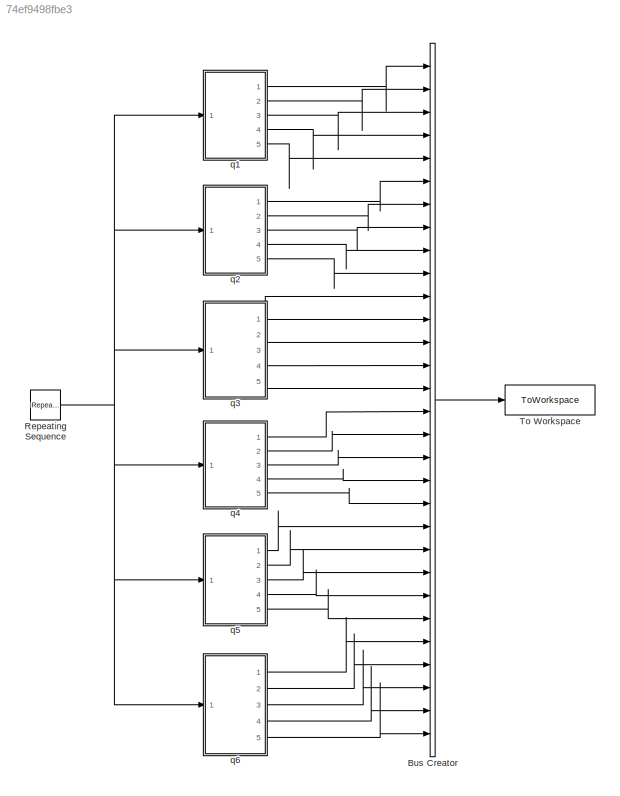
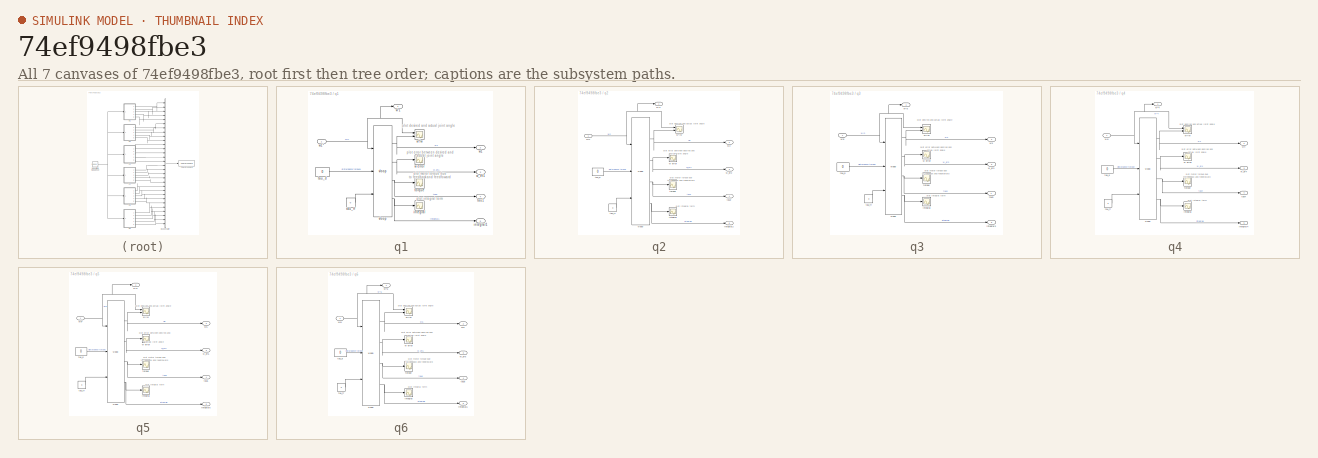
[diagram: thumbnail index - all 7 canvases of the model, root first then tree order]
MODEL slx_74ef9498fbe3
KIND model
CONFIG AbsTol = auto
CONFIG EnableMultiTasking = off
CONFIG FixedStep = auto
CONFIG MaxStep = auto
CONFIG MinStep = auto
CONFIG RelTol = 1e-3
CONFIG SampleTimeConstraint = Unconstrained
CONFIG SolverName = VariableStepAuto
CONFIG StartTime = 0.0
CONFIG StopTime = 1
BLOCK [BusCreator] Bus Creator
  DisplayOption = bar
  InheritFromInputs = on
  Inputs = 30
  Ports = [30, 1]
BLOCK [Reference] Repeating Sequence  REF=simulink/Sources/Repeating
Sequence
  Ports = [0, 1]
  SourceBlock = simulink/Sources/Repeating\nSequence
  SourceProductBaseCode = SL
  SourceType = Repeating table
BLOCK [ToWorkspace] To Workspace
  FixptAsFi = on
  MaxDataPoints = inf
  Ports = [1]
  SampleTime = -1
  SaveFormat = Structure With Time
  VariableName = vloop
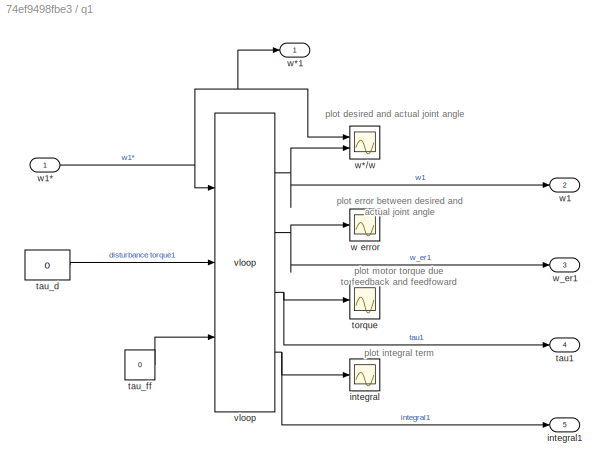
BLOCK [SubSystem] q1
  Ports = [1, 5]
  RequestExecContextInheritance = off
BLOCK [Scope] q1/integral 
  Floating = off
  NumInputPorts = 1
  Ports = [1]
  ScopeSpecificationString = Simulink.scopes.TimeScopeBlockCfg('CurrentConfiguration', extmgr.ConfigurationSet(extmgr.Configuration('Core','General UI',true),extmgr.Configuration('Core','Source UI',true),extmgr.Configuration('Sources','WiredSimulink',true,'DataLoggingVariableName','ScopeData1','DataLoggingSaveFormat','StructureWithTime','DataLoggingLimitDataPoints',true,'DataLoggingDecimation','1','DataLoggingDecimateData',tr...<+1779ch>
BLOCK [Outport] q1/integral1
  Port = 5
BLOCK [Outport] q1/tau1
  Port = 4
BLOCK [Constant] q1/tau_d
  Value = 0
BLOCK [Constant] q1/tau_ff
  Value = 0
BLOCK [Scope] q1/torque
  Floating = off
  NumInputPorts = 1
  Ports = [1]
  ScopeSpecificationString = Simulink.scopes.TimeScopeBlockCfg('CurrentConfiguration', extmgr.ConfigurationSet(extmgr.Configuration('Core','General UI',true),extmgr.Configuration('Core','Source UI',true),extmgr.Configuration('Sources','WiredSimulink',true,'DataLoggingVariableName','ScopeData2','DataLoggingSaveFormat','StructureWithTime','DataLoggingLimitDataPoints',true,'DataLoggingDecimation','1','DataLoggingDecimateData',tr...<+1768ch>
BLOCK [Reference] q1/vloop  REF=roblocks/Arm/vloop  (lib defined in mdl_2a292b13c81b, mdl_69400f8cfe22, +12 more)
  Ports = [3, 4]
  SourceBlock = roblocks/Arm/vloop
BLOCK [Scope] q1/w error
  Floating = off
  NumInputPorts = 1
  Ports = [1]
  ScopeSpecificationString = Simulink.scopes.TimeScopeBlockCfg('CurrentConfiguration', extmgr.ConfigurationSet(extmgr.Configuration('Core','General UI',true),extmgr.Configuration('Core','Source UI',true),extmgr.Configuration('Sources','WiredSimulink',true,'DataLoggingVariableName','ScopeData3','DataLoggingSaveFormat','StructureWithTime','DataLoggingLimitDataPoints',true,'DataLoggingDecimation','1','DataLoggingDecimateData',tr...<+1769ch>
BLOCK [Scope] q1/w*//w
  Floating = off
  NumInputPorts = 2
  Ports = [2]
  ScopeSpecificationString = Simulink.scopes.TimeScopeBlockCfg('CurrentConfiguration', extmgr.ConfigurationSet(extmgr.Configuration('Core','General UI',true),extmgr.Configuration('Core','Source UI',true),extmgr.Configuration('Sources','WiredSimulink',true,'DataLoggingSaveFormat','StructureWithTime','DataLoggingLimitDataPoints',true,'DataLoggingDecimation','1','DataLoggingDecimateData',true),extmgr.Configuration('Visuals','Tim...<+1743ch>
BLOCK [Outport] q1/w*1
BLOCK [Outport] q1/w1
  Port = 2
BLOCK [Inport] q1/w1*
BLOCK [Outport] q1/w_er1
  Port = 3
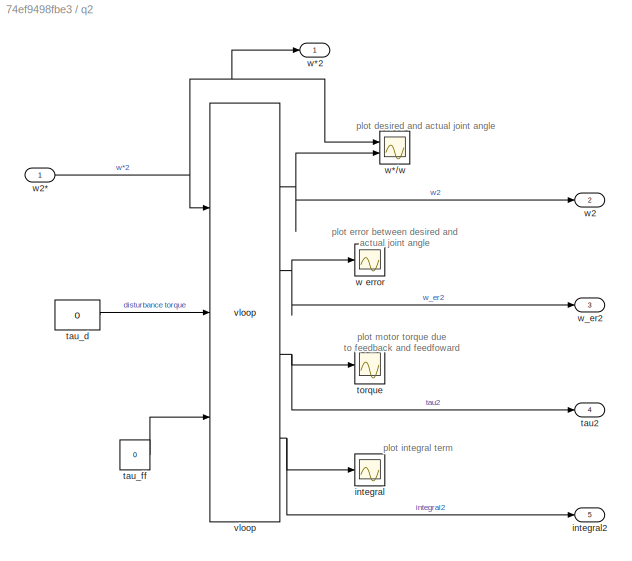
BLOCK [SubSystem] q2
  Ports = [1, 5]
  RequestExecContextInheritance = off
BLOCK [Scope] q2/integral 
  Floating = off
  NumInputPorts = 1
  Ports = [1]
  ScopeSpecificationString = Simulink.scopes.TimeScopeBlockCfg('CurrentConfiguration', extmgr.ConfigurationSet(extmgr.Configuration('Core','General UI',true),extmgr.Configuration('Core','Source UI',true),extmgr.Configuration('Sources','WiredSimulink',true,'DataLoggingVariableName','ScopeData1','DataLoggingSaveFormat','StructureWithTime','DataLoggingLimitDataPoints',true,'DataLoggingDecimation','1','DataLoggingDecimateData',tr...<+1770ch>  <repeated x5 — deduplicated; at blocks: integral>
BLOCK [Outport] q2/integral2
  Port = 5
BLOCK [Outport] q2/tau2
  Port = 4
BLOCK [Constant] q2/tau_d
  Value = 0
BLOCK [Constant] q2/tau_ff
  Value = 0
BLOCK [Scope] q2/torque
  Floating = off
  NumInputPorts = 1
  Ports = [1]
  ScopeSpecificationString = Simulink.scopes.TimeScopeBlockCfg('CurrentConfiguration', extmgr.ConfigurationSet(extmgr.Configuration('Core','General UI',true),extmgr.Configuration('Core','Source UI',true),extmgr.Configuration('Sources','WiredSimulink',true,'DataLoggingVariableName','ScopeData2','DataLoggingSaveFormat','StructureWithTime','DataLoggingLimitDataPoints',true,'DataLoggingDecimation','1','DataLoggingDecimateData',tr...<+1755ch>  <repeated x5 — deduplicated; at blocks: torque>
BLOCK [Reference] q2/vloop  REF=roblocks/Arm/vloop  (lib defined in mdl_2a292b13c81b, mdl_69400f8cfe22, +12 more)
  Ports = [3, 4]
  SourceBlock = roblocks/Arm/vloop
BLOCK [Scope] q2/w error
  Floating = off
  NumInputPorts = 1
  Ports = [1]
  ScopeSpecificationString = Simulink.scopes.TimeScopeBlockCfg('CurrentConfiguration', extmgr.ConfigurationSet(extmgr.Configuration('Core','General UI',true),extmgr.Configuration('Core','Source UI',true),extmgr.Configuration('Sources','WiredSimulink',true,'DataLoggingVariableName','ScopeData3','DataLoggingSaveFormat','StructureWithTime','DataLoggingLimitDataPoints',true,'DataLoggingDecimation','1','DataLoggingDecimateData',tr...<+1783ch>  <repeated x5 — deduplicated; at blocks: w error>
BLOCK [Scope] q2/w*//w
  Floating = off
  NumInputPorts = 2
  Ports = [2]
  ScopeSpecificationString = Simulink.scopes.TimeScopeBlockCfg('CurrentConfiguration', extmgr.ConfigurationSet(extmgr.Configuration('Core','General UI',true),extmgr.Configuration('Core','Source UI',true),extmgr.Configuration('Sources','WiredSimulink',true,'DataLoggingSaveFormat','StructureWithTime','DataLoggingLimitDataPoints',true,'DataLoggingDecimation','1','DataLoggingDecimateData',true),extmgr.Configuration('Visuals','Tim...<+1723ch>
BLOCK [Outport] q2/w*2
BLOCK [Outport] q2/w2
  Port = 2
BLOCK [Inport] q2/w2*
BLOCK [Outport] q2/w_er2
  Port = 3
BLOCK [SubSystem] q3
  Ports = [1, 5]
  RequestExecContextInheritance = off
BLOCK [Scope] q3/integral 
  Floating = off
  NumInputPorts = 1
  Ports = [1]
BLOCK [Outport] q3/integral3
  Port = 5
BLOCK [Outport] q3/tau3
  Port = 4
BLOCK [Constant] q3/tau_d
  Value = 0
BLOCK [Constant] q3/tau_ff
  Value = 0
BLOCK [Scope] q3/torque
  Floating = off
  NumInputPorts = 1
  Ports = [1]
BLOCK [Reference] q3/vloop  REF=roblocks/Arm/vloop  (lib defined in mdl_2a292b13c81b, mdl_69400f8cfe22, +12 more)
  Ports = [3, 4]
  SourceBlock = roblocks/Arm/vloop
BLOCK [Scope] q3/w error
  Floating = off
  NumInputPorts = 1
  Ports = [1]
BLOCK [Scope] q3/w*//w
  Floating = off
  NumInputPorts = 2
  Ports = [2]
  ScopeSpecificationString = Simulink.scopes.TimeScopeBlockCfg('CurrentConfiguration', extmgr.ConfigurationSet(extmgr.Configuration('Core','General UI',true),extmgr.Configuration('Core','Source UI',true),extmgr.Configuration('Sources','WiredSimulink',true,'DataLoggingSaveFormat','StructureWithTime','DataLoggingLimitDataPoints',true,'DataLoggingDecimation','1','DataLoggingDecimateData',true),extmgr.Configuration('Visuals','Tim...<+1737ch>
BLOCK [Outport] q3/w*3
BLOCK [Outport] q3/w3
  Port = 2
BLOCK [Inport] q3/w3*
BLOCK [Outport] q3/w_er3
  Port = 3
BLOCK [SubSystem] q4
  Ports = [1, 5]
  RequestExecContextInheritance = off
BLOCK [Scope] q4/integral 
  Floating = off
  NumInputPorts = 1
  Ports = [1]
BLOCK [Outport] q4/integral4
  Port = 5
BLOCK [Outport] q4/tau4
  Port = 4
BLOCK [Constant] q4/tau_d
  Value = 0
BLOCK [Constant] q4/tau_ff
  Value = 0
BLOCK [Scope] q4/torque
  Floating = off
  NumInputPorts = 1
  Ports = [1]
BLOCK [Reference] q4/vloop  REF=roblocks/Arm/vloop  (lib defined in mdl_2a292b13c81b, mdl_69400f8cfe22, +12 more)
  Ports = [3, 4]
  SourceBlock = roblocks/Arm/vloop
BLOCK [Scope] q4/w error
  Floating = off
  NumInputPorts = 1
  Ports = [1]
BLOCK [Scope] q4/w*//w
  Floating = off
  NumInputPorts = 2
  Ports = [2]
  ScopeSpecificationString = Simulink.scopes.TimeScopeBlockCfg('CurrentConfiguration', extmgr.ConfigurationSet(extmgr.Configuration('Core','General UI',true),extmgr.Configuration('Core','Source UI',true),extmgr.Configuration('Sources','WiredSimulink',true,'DataLoggingSaveFormat','StructureWithTime','DataLoggingLimitDataPoints',true,'DataLoggingDecimation','1','DataLoggingDecimateData',true),extmgr.Configuration('Visuals','Tim...<+1742ch>
BLOCK [Outport] q4/w*4
BLOCK [Outport] q4/w4
  Port = 2
BLOCK [Inport] q4/w4*
BLOCK [Outport] q4/w_er4
  Port = 3
BLOCK [SubSystem] q5
  Ports = [1, 5]
  RequestExecContextInheritance = off
BLOCK [Scope] q5/integral 
  Floating = off
  NumInputPorts = 1
  Ports = [1]
BLOCK [Outport] q5/integral5
  Port = 5
BLOCK [Outport] q5/tau5
  Port = 4
BLOCK [Constant] q5/tau_d
  Value = 0
BLOCK [Constant] q5/tau_ff
  Value = 0
BLOCK [Scope] q5/torque
  Floating = off
  NumInputPorts = 1
  Ports = [1]
BLOCK [Reference] q5/vloop  REF=roblocks/Arm/vloop  (lib defined in mdl_2a292b13c81b, mdl_69400f8cfe22, +12 more)
  Ports = [3, 4]
  SourceBlock = roblocks/Arm/vloop
BLOCK [Scope] q5/w error
  Floating = off
  NumInputPorts = 1
  Ports = [1]
BLOCK [Scope] q5/w*//w
  Floating = off
  NumInputPorts = 2
  Ports = [2]
  ScopeSpecificationString = Simulink.scopes.TimeScopeBlockCfg('CurrentConfiguration', extmgr.ConfigurationSet(extmgr.Configuration('Core','General UI',true),extmgr.Configuration('Core','Source UI',true),extmgr.Configuration('Sources','WiredSimulink',true,'DataLoggingSaveFormat','StructureWithTime','DataLoggingLimitDataPoints',true,'DataLoggingDecimation','1','DataLoggingDecimateData',true),extmgr.Configuration('Visuals','Tim...<+1731ch>
BLOCK [Outport] q5/w*5
BLOCK [Outport] q5/w5
  Port = 2
BLOCK [Inport] q5/w5*
BLOCK [Outport] q5/w_er5
  Port = 3
BLOCK [SubSystem] q6
  Ports = [1, 5]
  RequestExecContextInheritance = off
BLOCK [Scope] q6/integral 
  Floating = off
  NumInputPorts = 1
  Ports = [1]
BLOCK [Outport] q6/integral6
  Port = 5
BLOCK [Outport] q6/tau6
  Port = 4
BLOCK [Constant] q6/tau_d
  Value = 0
BLOCK [Constant] q6/tau_ff
  Value = 0
BLOCK [Scope] q6/torque
  Floating = off
  NumInputPorts = 1
  Ports = [1]
BLOCK [Reference] q6/vloop  REF=roblocks/Arm/vloop  (lib defined in mdl_2a292b13c81b, mdl_69400f8cfe22, +12 more)
  Ports = [3, 4]
  SourceBlock = roblocks/Arm/vloop
BLOCK [Scope] q6/w error
  Floating = off
  NumInputPorts = 1
  Ports = [1]
BLOCK [Scope] q6/w*//w
  Floating = off
  NumInputPorts = 2
  Ports = [2]
  ScopeSpecificationString = Simulink.scopes.TimeScopeBlockCfg('CurrentConfiguration', extmgr.ConfigurationSet(extmgr.Configuration('Core','General UI',true),extmgr.Configuration('Core','Source UI',true),extmgr.Configuration('Sources','WiredSimulink',true,'DataLoggingSaveFormat','StructureWithTime','DataLoggingLimitDataPoints',true,'DataLoggingDecimation','1','DataLoggingDecimateData',true),extmgr.Configuration('Visuals','Tim...<+1742ch>
BLOCK [Outport] q6/w*6
BLOCK [Outport] q6/w6
  Port = 2
BLOCK [Inport] q6/w6*
BLOCK [Outport] q6/w_er6
  Port = 3
ANNOTATION q1: plot desired and actual joint angle
ANNOTATION q1: plot error between desired and actual joint angle
ANNOTATION q1: plot integral term
ANNOTATION q1: plot motor torque due to feedback and feedfoward
ANNOTATION q2: plot desired and actual joint angle
ANNOTATION q2: plot error between desired and actual joint angle
ANNOTATION q2: plot integral term
ANNOTATION q2: plot motor torque due to feedback and feedfoward
ANNOTATION q3: plot desired and actual joint angle
ANNOTATION q3: plot error between desired and actual joint angle
ANNOTATION q3: plot integral term
ANNOTATION q3: plot motor torque due to feedback and feedfoward
ANNOTATION q4: plot desired and actual joint angle
ANNOTATION q4: plot error between desired and actual joint angle
ANNOTATION q4: plot integral term
ANNOTATION q4: plot motor torque due to feedback and feedfoward
ANNOTATION q5: plot desired and actual joint angle
ANNOTATION q5: plot error between desired and actual joint angle
ANNOTATION q5: plot integral term
ANNOTATION q5: plot motor torque due to feedback and feedfoward
ANNOTATION q6: plot desired and actual joint angle
ANNOTATION q6: plot error between desired and actual joint angle
ANNOTATION q6: plot integral term
ANNOTATION q6: plot motor torque due to feedback and feedfoward
LINE Bus Creator:1 -> To Workspace:1
NET Repeating Sequence:1 -> q1:1, q2:1, q3:1, q4:1, q5:1, q6:1
LINE q1/tau_d:1 -> q1/vloop:2
LINE q1/tau_ff:1 -> q1/vloop:3
NET q1/vloop:1 -> q1/w*//w:2, q1/w1:1
NET q1/vloop:2 -> q1/w error:1, q1/w_er1:1
NET q1/vloop:3 -> q1/tau1:1, q1/torque:1
NET q1/vloop:4 -> q1/integral :1, q1/integral1:1
NET q1/w1*:1 -> q1/vloop:1, q1/w*//w:1, q1/w*1:1
LINE q1:1 -> Bus Creator:1
LINE q1:2 -> Bus Creator:2
LINE q1:3 -> Bus Creator:3
LINE q1:4 -> Bus Creator:4
LINE q1:5 -> Bus Creator:5
LINE q2/tau_d:1 -> q2/vloop:2
LINE q2/tau_ff:1 -> q2/vloop:3
NET q2/vloop:1 -> q2/w*//w:2, q2/w2:1
NET q2/vloop:2 -> q2/w error:1, q2/w_er2:1
NET q2/vloop:3 -> q2/tau2:1, q2/torque:1
NET q2/vloop:4 -> q2/integral :1, q2/integral2:1
NET q2/w2*:1 -> q2/vloop:1, q2/w*//w:1, q2/w*2:1
LINE q2:1 -> Bus Creator:6
LINE q2:2 -> Bus Creator:7
LINE q2:3 -> Bus Creator:8
LINE q2:4 -> Bus Creator:9
LINE q2:5 -> Bus Creator:10
LINE q3/tau_d:1 -> q3/vloop:2
LINE q3/tau_ff:1 -> q3/vloop:3
NET q3/vloop:1 -> q3/w*//w:2, q3/w3:1
NET q3/vloop:2 -> q3/w error:1, q3/w_er3:1
NET q3/vloop:3 -> q3/tau3:1, q3/torque:1
NET q3/vloop:4 -> q3/integral :1, q3/integral3:1
NET q3/w3*:1 -> q3/vloop:1, q3/w*//w:1, q3/w*3:1
LINE q3:1 -> Bus Creator:11
LINE q3:2 -> Bus Creator:12
LINE q3:3 -> Bus Creator:13
LINE q3:4 -> Bus Creator:14
LINE q3:5 -> Bus Creator:15
LINE q4/tau_d:1 -> q4/vloop:2
LINE q4/tau_ff:1 -> q4/vloop:3
NET q4/vloop:1 -> q4/w*//w:2, q4/w4:1
NET q4/vloop:2 -> q4/w error:1, q4/w_er4:1
NET q4/vloop:3 -> q4/tau4:1, q4/torque:1
NET q4/vloop:4 -> q4/integral :1, q4/integral4:1
NET q4/w4*:1 -> q4/vloop:1, q4/w*//w:1, q4/w*4:1
LINE q4:1 -> Bus Creator:16
LINE q4:2 -> Bus Creator:17
LINE q4:3 -> Bus Creator:18
LINE q4:4 -> Bus Creator:19
LINE q4:5 -> Bus Creator:20
LINE q5/tau_d:1 -> q5/vloop:2
LINE q5/tau_ff:1 -> q5/vloop:3
NET q5/vloop:1 -> q5/w*//w:2, q5/w5:1
NET q5/vloop:2 -> q5/w error:1, q5/w_er5:1
NET q5/vloop:3 -> q5/tau5:1, q5/torque:1
NET q5/vloop:4 -> q5/integral :1, q5/integral5:1
NET q5/w5*:1 -> q5/vloop:1, q5/w*//w:1, q5/w*5:1
LINE q5:1 -> Bus Creator:21
LINE q5:2 -> Bus Creator:22
LINE q5:3 -> Bus Creator:23
LINE q5:4 -> Bus Creator:24
LINE q5:5 -> Bus Creator:25
LINE q6/tau_d:1 -> q6/vloop:2
LINE q6/tau_ff:1 -> q6/vloop:3
NET q6/vloop:1 -> q6/w*//w:2, q6/w6:1
NET q6/vloop:2 -> q6/w error:1, q6/w_er6:1
NET q6/vloop:3 -> q6/tau6:1, q6/torque:1
NET q6/vloop:4 -> q6/integral :1, q6/integral6:1
NET q6/w6*:1 -> q6/vloop:1, q6/w*//w:1, q6/w*6:1
LINE q6:1 -> Bus Creator:26
LINE q6:2 -> Bus Creator:27
LINE q6:3 -> Bus Creator:28
LINE q6:4 -> Bus Creator:29
LINE q6:5 -> Bus Creator:30
note: NET lines group one-source signal fan-out (src -> all destinations, sorted); 1:1 wires keep LINE
